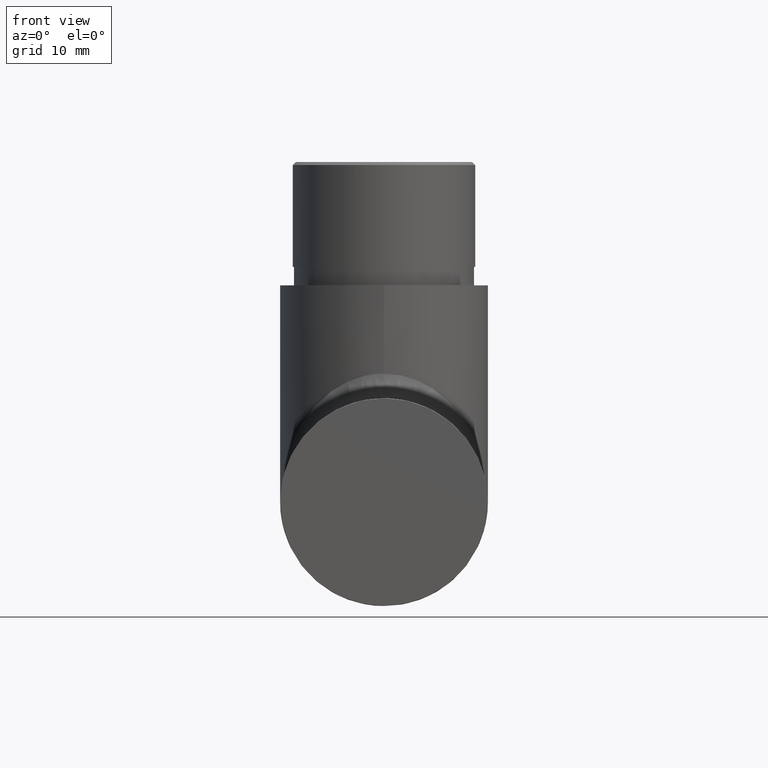
[diagram: clean part render]
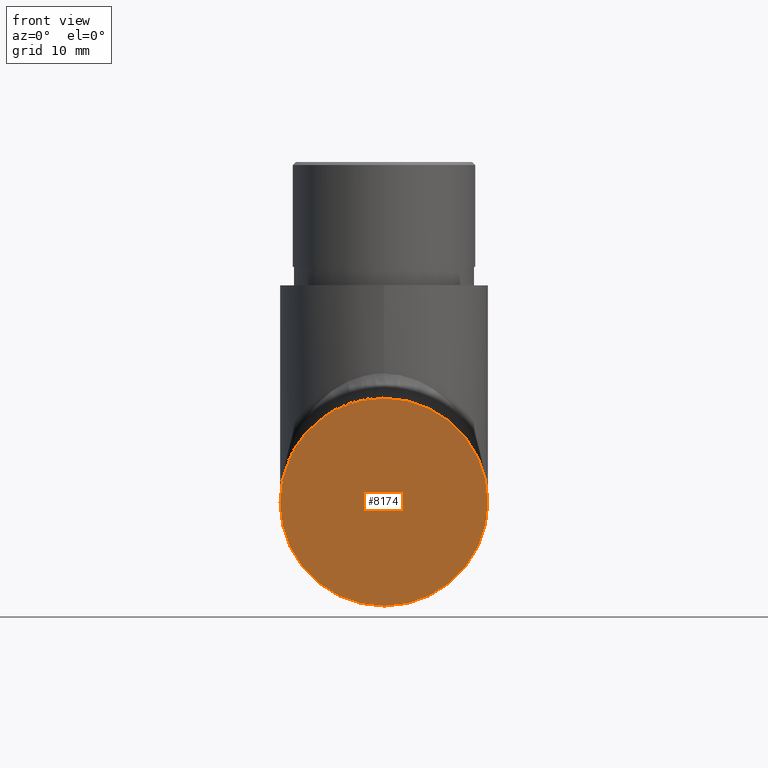
[diagram: same view with one face highlighted and labeled with its STEP entity id]
A machine part, front view. The second image highlights one B-rep face of the part: STEP entity #8174.
In plain terms, the highlighted planar face has unit normal (0, 1, 0).
Its self-contained STEP definition (entity closure, byte-faithful):
#243 = DIRECTION ( 'NONE',  ( 0.000000000000000000, -0.000000000000000000, 1.000000000000000000 ) ) ;
#285 = PLANE ( 'NONE',  #15667 ) ;
#1115 = DIRECTION ( 'NONE',  ( 0.000000000000000000, 1.000000000000000000, 0.000000000000000000 ) ) ;
#2316 = CARTESIAN_POINT ( 'NONE',  ( 2.063529856563289850E-15, 0.000000000000000000, 16.85000000000000142 ) ) ;
#2570 = ORIENTED_EDGE ( 'NONE', *, *, #5594, .F. ) ;
#3943 = VERTEX_POINT ( 'NONE', #9473 ) ;
#3992 = AXIS2_PLACEMENT_3D ( 'NONE', #10856, #1115, #13120 ) ;
#4893 = ORIENTED_EDGE ( 'NONE', *, *, #7807, .F. ) ;
#5410 = EDGE_LOOP ( 'NONE', ( #2570, #4893 ) ) ;
#5594 = EDGE_CURVE ( 'NONE', #3943, #8999, #12685, .T. ) ;
#6029 = CIRCLE ( 'NONE', #3992, 16.85000000000000142 ) ;
#7807 = EDGE_CURVE ( 'NONE', #8999, #3943, #6029, .T. ) ;
#8174 = ADVANCED_FACE ( 'NONE', ( #11734 ), #285, .F. ) ;
#8999 = VERTEX_POINT ( 'NONE', #2316 ) ;
#9473 = CARTESIAN_POINT ( 'NONE',  ( 0.000000000000000000, 0.000000000000000000, -16.85000000000000142 ) ) ;
#9955 = DIRECTION ( 'NONE',  ( 0.000000000000000000, 1.000000000000000000, 0.000000000000000000 ) ) ;
#10066 = DIRECTION ( 'NONE',  ( 0.000000000000000000, 0.000000000000000000, 1.000000000000000000 ) ) ;
#10465 = AXIS2_PLACEMENT_3D ( 'NONE', #12672, #12523, #10066 ) ;
#10856 = CARTESIAN_POINT ( 'NONE',  ( 0.000000000000000000, 0.000000000000000000, 0.000000000000000000 ) ) ;
#11734 = FACE_OUTER_BOUND ( 'NONE', #5410, .T. ) ;
#12523 = DIRECTION ( 'NONE',  ( 0.000000000000000000, 1.000000000000000000, 0.000000000000000000 ) ) ;
#12672 = CARTESIAN_POINT ( 'NONE',  ( 0.000000000000000000, 0.000000000000000000, 0.000000000000000000 ) ) ;
#12685 = CIRCLE ( 'NONE', #10465, 16.85000000000000142 ) ;
#13120 = DIRECTION ( 'NONE',  ( 0.000000000000000000, 0.000000000000000000, 1.000000000000000000 ) ) ;
#13420 = CARTESIAN_POINT ( 'NONE',  ( 0.000000000000000000, 0.000000000000000000, 0.000000000000000000 ) ) ;
#15667 = AXIS2_PLACEMENT_3D ( 'NONE', #13420, #9955, #243 ) ;